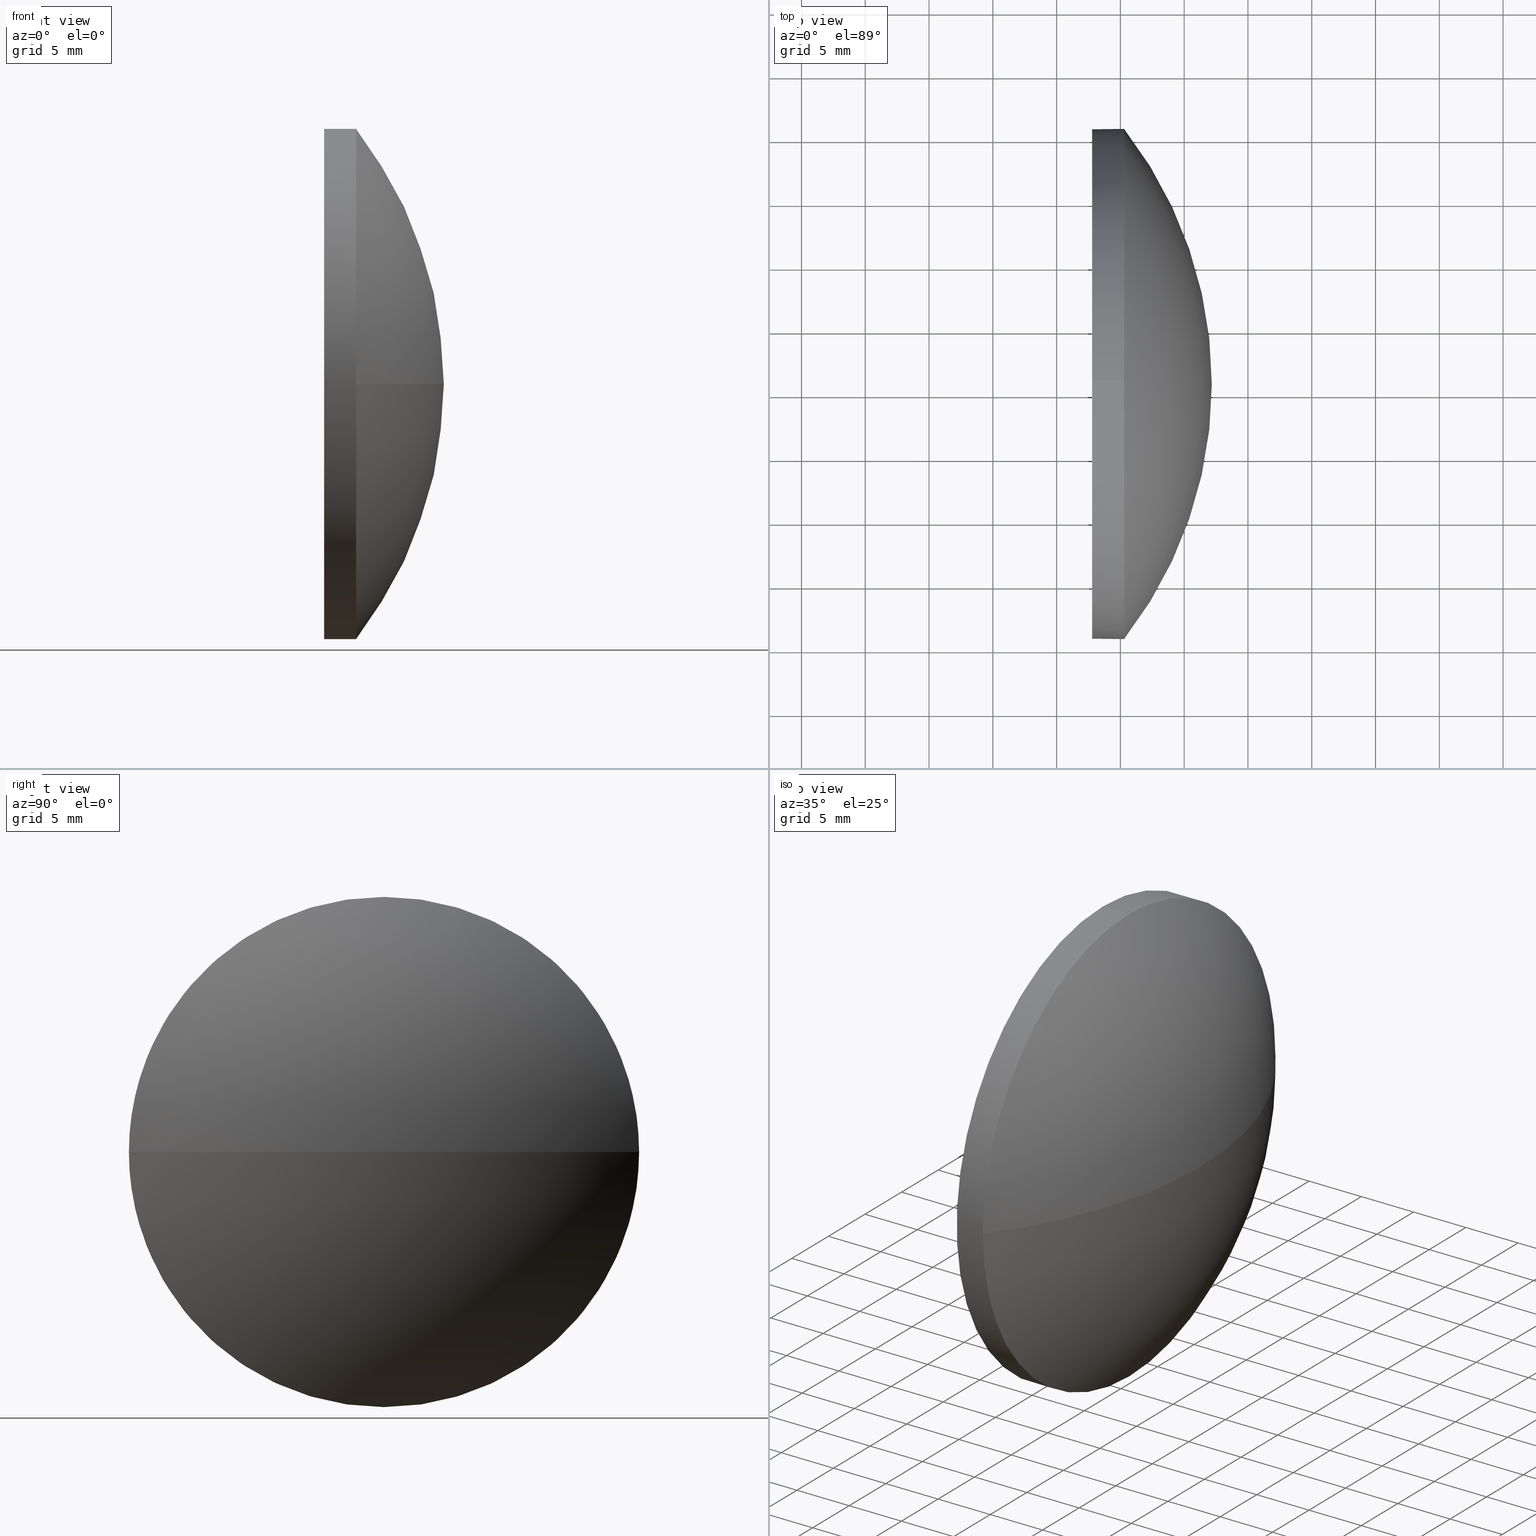
[diagram: canonical four-view strip — front | top / right | iso, engineering-drawing reading convention]
A machine part, canonical four-view strip (front | top / right | iso — engineering-drawing reading convention). The complete STEP part file that produces these views, byte-faithful:
ISO-10303-21;
HEADER;
FILE_DESCRIPTION (( 'STEP AP214' ),
    '1' );
FILE_NAME ('100056.STEP',
    '2019-04-30T02:37:16',
    ( '' ),
    ( '' ),
    'SwSTEP 2.0',
    'SolidWorks 2016',
    '' );
FILE_SCHEMA (( 'AUTOMOTIVE_DESIGN' ));
ENDSEC;

DATA;
#1 = VERTEX_POINT ( 'NONE', #58 ) ;
#2 = FACE_OUTER_BOUND ( 'NONE', #127, .T. ) ;
#3 = ORIENTED_EDGE ( 'NONE', *, *, #61, .T. ) ;
#4 = CARTESIAN_POINT ( 'NONE',  ( 475.2872802130123100, 140.7123955263322200, 0.0000000000000000000 ) ) ;
#5 = CARTESIAN_POINT ( 'NONE',  ( 472.7872802130123100, 140.7123955263322200, 19.99999999999998900 ) ) ;
#6 = ORIENTED_EDGE ( 'NONE', *, *, #45, .F. ) ;
#7 = CARTESIAN_POINT ( 'NONE',  ( 472.7872802130123100, 140.7123955263322200, 0.0000000000000000000 ) ) ;
#8 = COLOUR_RGB ( '',1.000000000000000000, 1.000000000000000000, 1.000000000000000000 ) ;
#9 =( NAMED_UNIT ( * ) SI_UNIT ( $, .STERADIAN. ) SOLID_ANGLE_UNIT ( ) );
#10 = APPLICATION_PROTOCOL_DEFINITION ( 'draft international standard', 'automotive_design', 1998, #171 ) ;
#11 = ORIENTED_EDGE ( 'NONE', *, *, #23, .F. ) ;
#12 = DIRECTION ( 'NONE',  ( -1.000000000000000000, -0.0000000000000000000, -0.0000000000000000000 ) ) ;
#13 = EDGE_CURVE ( 'NONE', #1, #157, #41, .T. ) ;
#14 = ORIENTED_EDGE ( 'NONE', *, *, #117, .F. ) ;
#15 = CARTESIAN_POINT ( 'NONE',  ( 475.2872802130123100, 140.7123955263322200, 0.0000000000000000000 ) ) ;
#16 = AXIS2_PLACEMENT_3D ( 'NONE', #90, #59, #107 ) ;
#17 = CARTESIAN_POINT ( 'NONE',  ( 463.2807828932391800, 140.7123955263322200, 0.0000000000000000000 ) ) ;
#18 = CARTESIAN_POINT ( 'NONE',  ( 472.7872802130123100, 140.7123955263322200, 0.0000000000000000000 ) ) ;
#19 = CARTESIAN_POINT ( 'NONE',  ( 0.0000000000000000000, 0.0000000000000000000, 0.0000000000000000000 ) ) ;
#20 = ORIENTED_EDGE ( 'NONE', *, *, #61, .F. ) ;
#21 = SURFACE_STYLE_FILL_AREA ( #62 ) ;
#22 =( LENGTH_UNIT ( ) NAMED_UNIT ( * ) SI_UNIT ( .MILLI., .METRE. ) );
#23 = EDGE_CURVE ( 'NONE', #100, #157, #122, .T. ) ;
#24 = ADVANCED_BREP_SHAPE_REPRESENTATION ( '100056', ( #101, #81 ), #185 ) ;
#25 = SURFACE_STYLE_FILL_AREA ( #155 ) ;
#26 = AXIS2_PLACEMENT_3D ( 'NONE', #15, #91, #109 ) ;
#27 = ORIENTED_EDGE ( 'NONE', *, *, #60, .T. ) ;
#28 = CARTESIAN_POINT ( 'NONE',  ( 449.6575127711518600, 140.7123955263322200, 0.0000000000000000000 ) ) ;
#29 = EDGE_CURVE ( 'NONE', #143, #103, #154, .T. ) ;
#30 = DIRECTION ( 'NONE',  ( -1.000000000000000000, -0.0000000000000000000, -0.0000000000000000000 ) ) ;
#31 = PRODUCT_DEFINITION_SHAPE ( 'NONE', 'NONE',  #67 ) ;
#32 = CARTESIAN_POINT ( 'NONE',  ( 472.7872802130123100, 140.7123955263322200, 0.0000000000000000000 ) ) ;
#33 = LINE ( 'NONE', #38, #179 ) ;
#34 = DIRECTION ( 'NONE',  ( -1.000000000000000000, -0.0000000000000000000, -0.0000000000000000000 ) ) ;
#35 = DIRECTION ( 'NONE',  ( 0.0000000000000000000, 1.224646799147353200E-016, -1.000000000000000000 ) ) ;
#36 =( NAMED_UNIT ( * ) PLANE_ANGLE_UNIT ( ) SI_UNIT ( $, .RADIAN. ) );
#37 = EDGE_LOOP ( 'NONE', ( #27, #135 ) ) ;
#38 = CARTESIAN_POINT ( 'NONE',  ( 463.2807828932391800, 140.7123955263322200, -19.99999999999998900 ) ) ;
#39 = MECHANICAL_DESIGN_GEOMETRIC_PRESENTATION_REPRESENTATION (  '', ( #97 ), #99 ) ;
#40 = EDGE_LOOP ( 'NONE', ( #3, #146, #172, #145, #71 ) ) ;
#41 = CIRCLE ( 'NONE', #105, 19.99999999999998900 ) ;
#42 = VERTEX_POINT ( 'NONE', #5 ) ;
#43 = ADVANCED_FACE ( 'NONE', ( #72 ), #158, .T. ) ;
#44 = DIRECTION ( 'NONE',  ( 0.0000000000000000000, 0.0000000000000000000, 1.000000000000000000 ) ) ;
#45 = EDGE_CURVE ( 'NONE', #103, #1, #65, .T. ) ;
#46 = DIRECTION ( 'NONE',  ( -1.000000000000000000, -0.0000000000000000000, -0.0000000000000000000 ) ) ;
#47 = DIRECTION ( 'NONE',  ( 0.0000000000000000000, 0.0000000000000000000, 1.000000000000000000 ) ) ;
#48 = PRODUCT_DEFINITION_FORMATION_WITH_SPECIFIED_SOURCE ( '�κ�', '', #174, .NOT_KNOWN. ) ;
#49 = DIRECTION ( 'NONE',  ( 1.000000000000000000, 0.0000000000000000000, 0.0000000000000000000 ) ) ;
#50 = EDGE_LOOP ( 'NONE', ( #11, #95, #69, #20 ) ) ;
#51 = DIRECTION ( 'NONE',  ( 0.0000000000000000000, 1.000000000000000000, 0.0000000000000000000 ) ) ;
#52 = CARTESIAN_POINT ( 'NONE',  ( 472.7872802130123100, 140.7123955263322200, -19.99999999999998900 ) ) ;
#53 = ORIENTED_EDGE ( 'NONE', *, *, #45, .T. ) ;
#54 = APPLICATION_PROTOCOL_DEFINITION ( 'draft international standard', 'automotive_design', 1998, #55 ) ;
#55 = APPLICATION_CONTEXT ( 'automotive_design' ) ;
#56 = AXIS2_PLACEMENT_3D ( 'NONE', #140, #35, #141 ) ;
#57 = CLOSED_SHELL ( 'NONE', ( #164, #43, #162, #73, #104 ) ) ;
#58 = CARTESIAN_POINT ( 'NONE',  ( 475.2872802130123100, 140.7123955263322200, 19.99999999999998900 ) ) ;
#59 = DIRECTION ( 'NONE',  ( -0.0000000000000000000, 0.0000000000000000000, 1.000000000000000000 ) ) ;
#60 = EDGE_CURVE ( 'NONE', #42, #186, #184, .T. ) ;
#61 = EDGE_CURVE ( 'NONE', #157, #143, #84, .T. ) ;
#62 = FILL_AREA_STYLE ('',( #111 ) ) ;
#63 = PRODUCT_RELATED_PRODUCT_CATEGORY ( 'part', '', ( #174 ) ) ;
#64 = UNCERTAINTY_MEASURE_WITH_UNIT (LENGTH_MEASURE( 1.000000000000000100E-005 ), #116, 'distance_accuracy_value', 'NONE');
#65 = CIRCLE ( 'NONE', #119, 19.99999999999998900 ) ;
#66 = DIRECTION ( 'NONE',  ( 0.0000000000000000000, 0.0000000000000000000, 1.000000000000000000 ) ) ;
#67 = PRODUCT_DEFINITION ( 'δ֪', '', #48, #160 ) ;
#68 = PRESENTATION_LAYER_ASSIGNMENT (  '', '', ( #144 ) ) ;
#69 = ORIENTED_EDGE ( 'NONE', *, *, #29, .F. ) ;
#70 = CIRCLE ( 'NONE', #56, 32.50976744186046100 ) ;
#71 = ORIENTED_EDGE ( 'NONE', *, *, #13, .T. ) ;
#72 = FACE_OUTER_BOUND ( 'NONE', #50, .T. ) ;
#73 = ADVANCED_FACE ( 'NONE', ( #118 ), #147, .T. ) ;
#74 = AXIS2_PLACEMENT_3D ( 'NONE', #32, #46, #76 ) ;
#75 = DIRECTION ( 'NONE',  ( -1.000000000000000000, -0.0000000000000000000, -0.0000000000000000000 ) ) ;
#76 = DIRECTION ( 'NONE',  ( 0.0000000000000000000, 0.0000000000000000000, 1.000000000000000000 ) ) ;
#77 = ORIENTED_EDGE ( 'NONE', *, *, #94, .F. ) ;
#78 = DIRECTION ( 'NONE',  ( 1.000000000000000000, 0.0000000000000000000, 0.0000000000000000000 ) ) ;
#79 = PRESENTATION_STYLE_ASSIGNMENT (( #170 ) ) ;
#80 = DIRECTION ( 'NONE',  ( 0.0000000000000000000, 0.0000000000000000000, -1.000000000000000000 ) ) ;
#81 = AXIS2_PLACEMENT_3D ( 'NONE', #19, #138, #49 ) ;
#82 = SURFACE_SIDE_STYLE ('',( #25 ) ) ;
#83 = DIRECTION ( 'NONE',  ( -1.000000000000000000, -0.0000000000000000000, -0.0000000000000000000 ) ) ;
#84 = CIRCLE ( 'NONE', #88, 19.99999999999998900 ) ;
#85 = UNCERTAINTY_MEASURE_WITH_UNIT (LENGTH_MEASURE( 1.000000000000000100E-005 ), #22, 'distance_accuracy_value', 'NONE');
#86 =( NAMED_UNIT ( * ) PLANE_ANGLE_UNIT ( ) SI_UNIT ( $, .RADIAN. ) );
#87 = AXIS2_PLACEMENT_3D ( 'NONE', #142, #180, #51 ) ;
#88 = AXIS2_PLACEMENT_3D ( 'NONE', #149, #168, #47 ) ;
#89 = SHAPE_DEFINITION_REPRESENTATION ( #31, #24 ) ;
#90 = CARTESIAN_POINT ( 'NONE',  ( 449.6575127711518600, 140.7123955263322200, 0.0000000000000000000 ) ) ;
#91 = DIRECTION ( 'NONE',  ( -1.000000000000000000, -0.0000000000000000000, -0.0000000000000000000 ) ) ;
#92 = DIRECTION ( 'NONE',  ( -1.000000000000000000, -0.0000000000000000000, -0.0000000000000000000 ) ) ;
#93 =( NAMED_UNIT ( * ) PLANE_ANGLE_UNIT ( ) SI_UNIT ( $, .RADIAN. ) );
#94 = EDGE_CURVE ( 'NONE', #143, #186, #33, .T. ) ;
#95 = ORIENTED_EDGE ( 'NONE', *, *, #134, .T. ) ;
#96 =( NAMED_UNIT ( * ) SI_UNIT ( $, .STERADIAN. ) SOLID_ANGLE_UNIT ( ) );
#97 = STYLED_ITEM ( 'NONE', ( #136 ), #101 ) ;
#98 = PLANE ( 'NONE',  #150 ) ;
#99 =( GEOMETRIC_REPRESENTATION_CONTEXT ( 3 ) GLOBAL_UNCERTAINTY_ASSIGNED_CONTEXT ( ( #64 ) ) GLOBAL_UNIT_ASSIGNED_CONTEXT ( ( #116, #36, #96 ) ) REPRESENTATION_CONTEXT ( 'NONE', 'WORKASPACE' ) );
#100 = VERTEX_POINT ( 'NONE', #182 ) ;
#101 = MANIFOLD_SOLID_BREP ( '��ת1', #57 ) ;
#102 = EDGE_LOOP ( 'NONE', ( #77, #115, #53, #163, #14 ) ) ;
#103 = VERTEX_POINT ( 'NONE', #152 ) ;
#104 = ADVANCED_FACE ( 'NONE', ( #165 ), #98, .F. ) ;
#105 = AXIS2_PLACEMENT_3D ( 'NONE', #166, #30, #110 ) ;
#106 = AXIS2_PLACEMENT_3D ( 'NONE', #17, #75, #137 ) ;
#107 = DIRECTION ( 'NONE',  ( 1.000000000000000000, 0.0000000000000000000, 0.0000000000000000000 ) ) ;
#108 = DIRECTION ( 'NONE',  ( -1.000000000000000000, -0.0000000000000000000, -0.0000000000000000000 ) ) ;
#109 = DIRECTION ( 'NONE',  ( 0.0000000000000000000, 0.0000000000000000000, 1.000000000000000000 ) ) ;
#110 = DIRECTION ( 'NONE',  ( 0.0000000000000000000, 0.0000000000000000000, 1.000000000000000000 ) ) ;
#111 = FILL_AREA_STYLE_COLOUR ( '', #8 ) ;
#112 = COLOUR_RGB ( '',1.000000000000000000, 1.000000000000000000, 1.000000000000000000 ) ;
#113 = DIRECTION ( 'NONE',  ( 0.0000000000000000000, 0.0000000000000000000, 1.000000000000000000 ) ) ;
#114 = CARTESIAN_POINT ( 'NONE',  ( 463.2807828932391800, 140.7123955263322200, 19.99999999999998900 ) ) ;
#115 = ORIENTED_EDGE ( 'NONE', *, *, #29, .T. ) ;
#116 =( LENGTH_UNIT ( ) NAMED_UNIT ( * ) SI_UNIT ( .MILLI., .METRE. ) );
#117 = EDGE_CURVE ( 'NONE', #186, #42, #169, .T. ) ;
#118 = FACE_OUTER_BOUND ( 'NONE', #102, .T. ) ;
#119 = AXIS2_PLACEMENT_3D ( 'NONE', #4, #108, #44 ) ;
#120 = ORIENTED_EDGE ( 'NONE', *, *, #134, .F. ) ;
#121 = PRESENTATION_LAYER_ASSIGNMENT (  '', '', ( #97 ) ) ;
#122 = CIRCLE ( 'NONE', #16, 32.50976744186046100 ) ;
#123 = AXIS2_PLACEMENT_3D ( 'NONE', #178, #92, #113 ) ;
#124 = DIRECTION ( 'NONE',  ( 0.0000000000000000000, 1.000000000000000000, 0.0000000000000000000 ) ) ;
#125 = SURFACE_SIDE_STYLE ('',( #21 ) ) ;
#126 = CARTESIAN_POINT ( 'NONE',  ( 475.2872802130123100, 140.7123955263322200, -19.99999999999998900 ) ) ;
#127 = EDGE_LOOP ( 'NONE', ( #120, #175, #151, #6 ) ) ;
#128 = FILL_AREA_STYLE_COLOUR ( '', #112 ) ;
#129 = FACE_OUTER_BOUND ( 'NONE', #40, .T. ) ;
#130 = AXIS2_PLACEMENT_3D ( 'NONE', #28, #148, #124 ) ;
#131 = CARTESIAN_POINT ( 'NONE',  ( 475.2872802130123100, 160.7123955263322200, 0.0000000000000000000 ) ) ;
#132 =( GEOMETRIC_REPRESENTATION_CONTEXT ( 3 ) GLOBAL_UNCERTAINTY_ASSIGNED_CONTEXT ( ( #181 ) ) GLOBAL_UNIT_ASSIGNED_CONTEXT ( ( #139, #93, #9 ) ) REPRESENTATION_CONTEXT ( 'NONE', 'WORKASPACE' ) );
#133 = VECTOR ( 'NONE', #34, 1000.000000000000000 ) ;
#134 = EDGE_CURVE ( 'NONE', #100, #103, #70, .T. ) ;
#135 = ORIENTED_EDGE ( 'NONE', *, *, #117, .T. ) ;
#136 = PRESENTATION_STYLE_ASSIGNMENT (( #153 ) ) ;
#137 = DIRECTION ( 'NONE',  ( 0.0000000000000000000, 0.0000000000000000000, 1.000000000000000000 ) ) ;
#138 = DIRECTION ( 'NONE',  ( 0.0000000000000000000, 0.0000000000000000000, 1.000000000000000000 ) ) ;
#139 =( LENGTH_UNIT ( ) NAMED_UNIT ( * ) SI_UNIT ( .MILLI., .METRE. ) );
#140 = CARTESIAN_POINT ( 'NONE',  ( 449.6575127711518600, 140.7123955263322200, 0.0000000000000000000 ) ) ;
#141 = DIRECTION ( 'NONE',  ( 0.0000000000000000000, 1.000000000000000000, 1.224646799147353200E-016 ) ) ;
#142 = CARTESIAN_POINT ( 'NONE',  ( 449.6575127711518600, 140.7123955263322200, 0.0000000000000000000 ) ) ;
#143 = VERTEX_POINT ( 'NONE', #126 ) ;
#144 = STYLED_ITEM ( 'NONE', ( #79 ), #24 ) ;
#145 = ORIENTED_EDGE ( 'NONE', *, *, #167, .F. ) ;
#146 = ORIENTED_EDGE ( 'NONE', *, *, #94, .T. ) ;
#147 = CYLINDRICAL_SURFACE ( 'NONE', #106, 19.99999999999998900 ) ;
#148 = DIRECTION ( 'NONE',  ( -0.0000000000000000000, 0.0000000000000000000, -1.000000000000000000 ) ) ;
#149 = CARTESIAN_POINT ( 'NONE',  ( 475.2872802130123100, 140.7123955263322200, 0.0000000000000000000 ) ) ;
#150 = AXIS2_PLACEMENT_3D ( 'NONE', #18, #78, #80 ) ;
#151 = ORIENTED_EDGE ( 'NONE', *, *, #13, .F. ) ;
#152 = CARTESIAN_POINT ( 'NONE',  ( 475.2872802130123100, 120.7123955263322300, -2.449293598294705700E-015 ) ) ;
#153 = SURFACE_STYLE_USAGE ( .BOTH. , #82 ) ;
#154 = CIRCLE ( 'NONE', #26, 19.99999999999998900 ) ;
#155 = FILL_AREA_STYLE ('',( #128 ) ) ;
#156 = PRODUCT_CONTEXT ( 'NONE', #171, 'mechanical' ) ;
#157 = VERTEX_POINT ( 'NONE', #131 ) ;
#158 = SPHERICAL_SURFACE ( 'NONE', #130, 32.50976744186046100 ) ;
#159 = LINE ( 'NONE', #114, #133 ) ;
#160 = PRODUCT_DEFINITION_CONTEXT ( 'detailed design', #55, 'design' ) ;
#161 = AXIS2_PLACEMENT_3D ( 'NONE', #7, #12, #66 ) ;
#162 = ADVANCED_FACE ( 'NONE', ( #2 ), #177, .T. ) ;
#163 = ORIENTED_EDGE ( 'NONE', *, *, #167, .T. ) ;
#164 = ADVANCED_FACE ( 'NONE', ( #129 ), #176, .T. ) ;
#165 = FACE_OUTER_BOUND ( 'NONE', #37, .T. ) ;
#166 = CARTESIAN_POINT ( 'NONE',  ( 475.2872802130123100, 140.7123955263322200, 0.0000000000000000000 ) ) ;
#167 = EDGE_CURVE ( 'NONE', #1, #42, #159, .T. ) ;
#168 = DIRECTION ( 'NONE',  ( -1.000000000000000000, -0.0000000000000000000, -0.0000000000000000000 ) ) ;
#169 = CIRCLE ( 'NONE', #161, 19.99999999999998900 ) ;
#170 = SURFACE_STYLE_USAGE ( .BOTH. , #125 ) ;
#171 = APPLICATION_CONTEXT ( 'automotive_design' ) ;
#172 = ORIENTED_EDGE ( 'NONE', *, *, #60, .F. ) ;
#173 = MECHANICAL_DESIGN_GEOMETRIC_PRESENTATION_REPRESENTATION (  '', ( #144 ), #132 ) ;
#174 = PRODUCT ( '100056', '100056', '', ( #156 ) ) ;
#175 = ORIENTED_EDGE ( 'NONE', *, *, #23, .T. ) ;
#176 = CYLINDRICAL_SURFACE ( 'NONE', #123, 19.99999999999998900 ) ;
#177 = SPHERICAL_SURFACE ( 'NONE', #87, 32.50976744186046100 ) ;
#178 = CARTESIAN_POINT ( 'NONE',  ( 463.2807828932391800, 140.7123955263322200, 0.0000000000000000000 ) ) ;
#179 = VECTOR ( 'NONE', #83, 1000.000000000000000 ) ;
#180 = DIRECTION ( 'NONE',  ( -0.0000000000000000000, 0.0000000000000000000, -1.000000000000000000 ) ) ;
#181 = UNCERTAINTY_MEASURE_WITH_UNIT (LENGTH_MEASURE( 1.000000000000000100E-005 ), #139, 'distance_accuracy_value', 'NONE');
#182 = CARTESIAN_POINT ( 'NONE',  ( 482.1672802130123000, 140.7123955263322200, 0.0000000000000000000 ) ) ;
#183 =( NAMED_UNIT ( * ) SI_UNIT ( $, .STERADIAN. ) SOLID_ANGLE_UNIT ( ) );
#184 = CIRCLE ( 'NONE', #74, 19.99999999999998900 ) ;
#185 =( GEOMETRIC_REPRESENTATION_CONTEXT ( 3 ) GLOBAL_UNCERTAINTY_ASSIGNED_CONTEXT ( ( #85 ) ) GLOBAL_UNIT_ASSIGNED_CONTEXT ( ( #22, #86, #183 ) ) REPRESENTATION_CONTEXT ( 'NONE', 'WORKASPACE' ) );
#186 = VERTEX_POINT ( 'NONE', #52 ) ;
ENDSEC;
END-ISO-10303-21;
